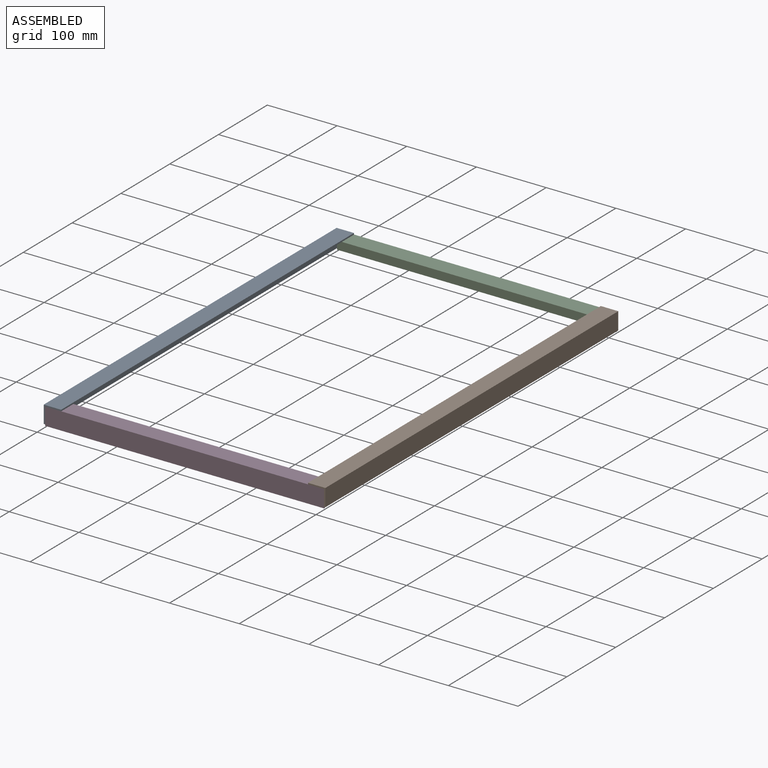
[diagram: assembled view]
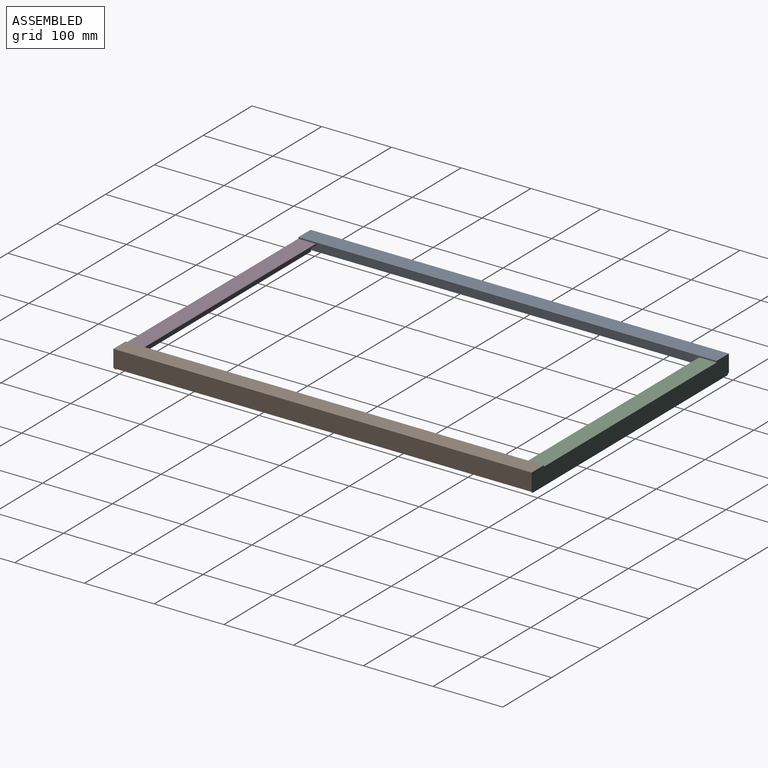
[diagram: assembled view, second angle]
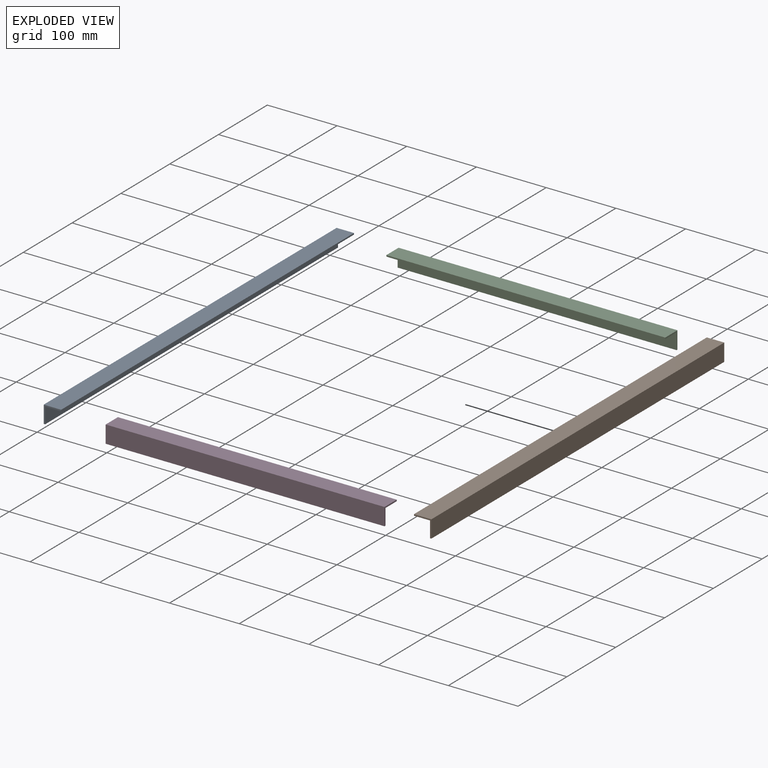
[diagram: exploded view]
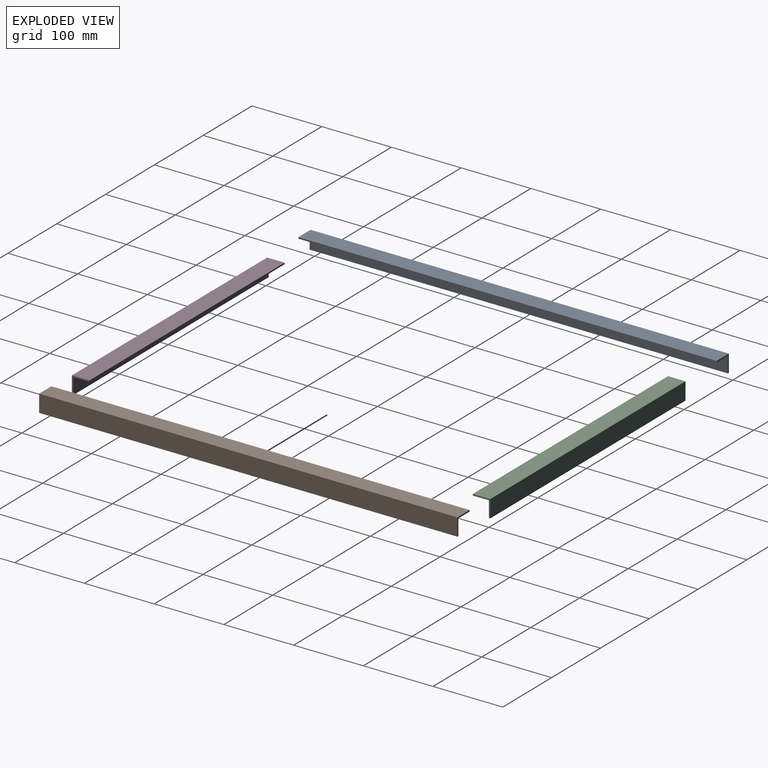
[diagram: exploded view, second angle]
ASSEMBLY  parts=4 mates=3
PART A: 8 faces, bbox 25x600x25 mm
  f0: plane 600x25mm, normal (1,0,0), area 15000mm2, adj f1,f5,f6,f7
  f1: plane 600x25mm, normal (0,0,1), area 15000mm2, adj f0,f2,f6,f7
  f2: plane 600x2mm, normal (-1,0,0), area 1200mm2, adj f1,f3,f6,f7
  f3: plane 600x23mm, normal (0,0,-1), area 13800mm2, adj f2,f4,f6,f7
  f4: plane 600x23mm, normal (-1,0,0), area 13800mm2, adj f3,f5,f6,f7
  f5: plane 600x2mm, normal (0,0,-1), area 1200mm2, adj f0,f4,f6,f7
  f6: plane 25x25mm, normal (0,1,0), area 96mm2, adj f0,f1,f2,f3,f4,f5
  f7: plane 25x25mm, normal (0,-1,0), area 96mm2, adj f0,f1,f2,f3,f4,f5
PART B: same geometry as A
PART C: 8 faces, bbox 25x400x25 mm
  f0: plane 400x25mm, normal (0,0,1), area 10000mm2, adj f1,f5,f6,f7
  f1: plane 400x2mm, normal (-1,0,0), area 800mm2, adj f0,f2,f6,f7
  f2: plane 400x23mm, normal (0,0,-1), area 9200mm2, adj f1,f3,f6,f7
  f3: plane 400x23mm, normal (-1,0,0), area 9200mm2, adj f2,f4,f6,f7
  f4: plane 400x2mm, normal (0,0,-1), area 800mm2, adj f3,f5,f6,f7
  f5: plane 400x25mm, normal (1,0,0), area 10000mm2, adj f0,f4,f6,f7
  f6: plane 25x25mm, normal (0,1,0), area 96mm2, adj f0,f1,f2,f3,f4,f5
  f7: plane 25x25mm, normal (0,-1,0), area 96mm2, adj f0,f1,f2,f3,f4,f5
PART D: same geometry as C
PLACE A rot(axis=(0,0,1),180deg) t=(-390.87,300.54,12.76)mm
PLACE B t=(13.13,-299.46,12.76)mm
PLACE C rot(axis=(0,0,1),90deg) t=(11.13,300.54,10.76)mm
PLACE D rot(axis=(0,0,-1),90deg) t=(-388.87,-299.46,10.76)mm
MATE fastened D.f7 <-> A.f4  axis (-1,0,0) through (-388.87,-299.46,10.76)mm
MATE fastened A.f4 <-> C.f6  axis (1,0,0) through (-388.87,300.54,10.76)mm
MATE fastened C.f7 <-> B.f4  axis (1,0,0) through (11.13,300.54,10.76)mm
